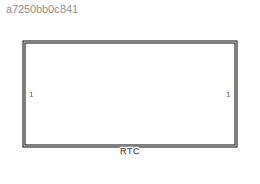
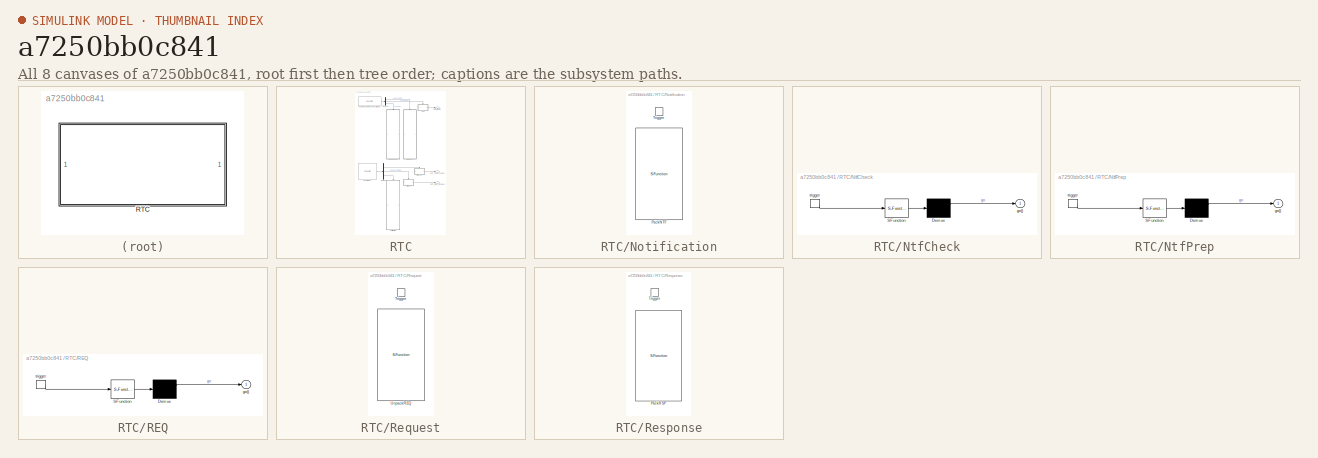
[diagram: thumbnail index - all 8 canvases of the model, root first then tree order]
MODEL slx_a7250bb0c841
KIND library
CONFIG AbsTol = auto
CONFIG EnableMultiTasking = off
CONFIG FixedStep = auto
CONFIG MaxStep = auto
CONFIG MinStep = auto
CONFIG RelTol = 1e-3
CONFIG SampleTimeConstraint = Unconstrained
CONFIG SolverName = VariableStepAuto
CONFIG StartTime = 0.0
CONFIG StopTime = 10.0
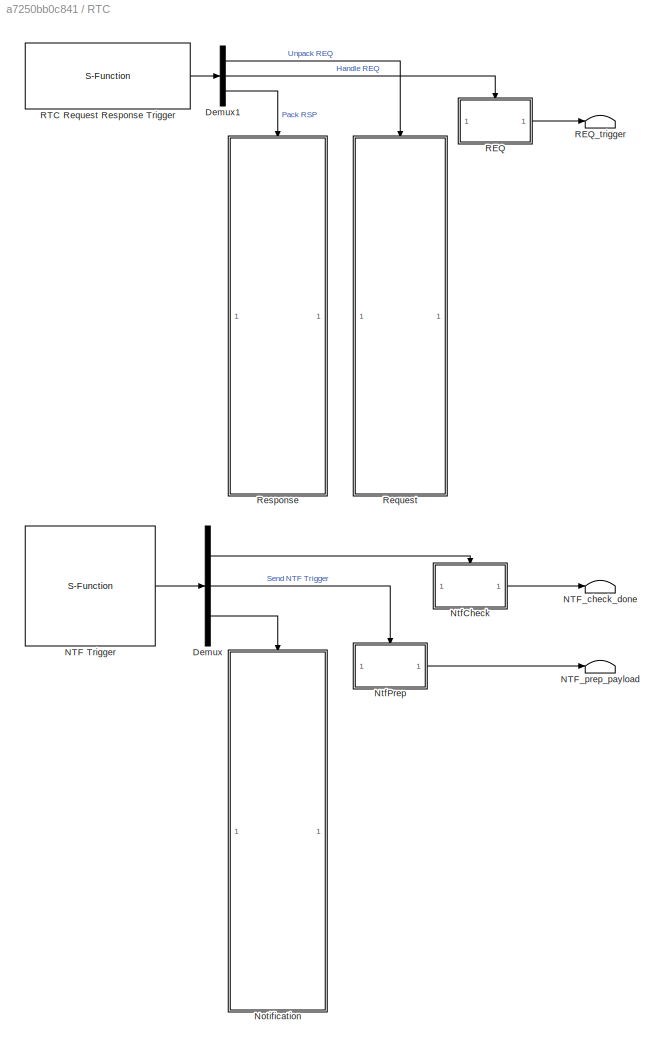
BLOCK [SubSystem] RTC
  MoveFcn = RTC_Mask.CB_TriggerInit(gcbh);
BLOCK [Demux] RTC/Demux
  Outputs = 3
BLOCK [Demux] RTC/Demux1
  Outputs = 3
BLOCK [S-Function] RTC/NTF Trigger
  EnableBusSupport = off
  FunctionName = RTC_NTF
  Parameters = MessagePath,EnableNotification, NTF.TotalCharSize, DbgTriggerNTF
  SFcnIsStateOwnerBlock = off
  SFunctionDeploymentMode = off
BLOCK [Terminator] RTC/NTF_check_done
BLOCK [Terminator] RTC/NTF_prep_payload
BLOCK [SubSystem] RTC/Notification
  TreatAsAtomicUnit = on
BLOCK [S-Function] RTC/Notification/PackNTF
  EnableBusSupport = off
  FunctionName = RTC_BytePack
  Parameters = PackedDataName,unpackedNameList,UnpackedTypes,UnpackedWidths,ElemCharIndex,ElemCharSize,TotalCharSize,BlockRole,MessagePath,DebugLevel
  SFcnIsStateOwnerBlock = off
  SFunctionDeploymentMode = off
BLOCK [TriggerPort] RTC/Notification/Trigger
  StatesWhenEnabling = held
  TriggerType = function-call
  VariantControl = Variant
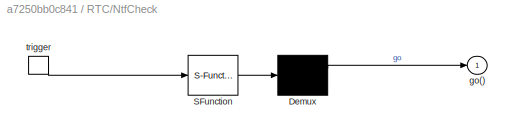
BLOCK [SubSystem] RTC/NtfCheck
  ErrorFcn = Stateflow.Translate.translate
  PermitHierarchicalResolution = ExplicitOnly
  RTWFcnNameOpts = User specified
  RTWSystemCode = Inline
  SFBlockType = MATLAB Function
  TreatAsAtomicUnit = on
BLOCK [Demux] RTC/NtfCheck/ Demux 
  Outputs = 1
BLOCK [S-Function] RTC/NtfCheck/ SFunction 
  EnableBusSupport = off
  FunctionName = sf_sfun
  PortCounts = [1 1]
  SFcnIsStateOwnerBlock = off
  SFunctionDeploymentMode = off
  Tag = Stateflow S-Function 1
BLOCK [Outport] RTC/NtfCheck/go()
  VectorParamsAs1DForOutWhenUnconnected = off
BLOCK [TriggerPort] RTC/NtfCheck/trigger
  ShowOutputPort = on
  StatesWhenEnabling = held
  TriggerType = function-call
  VariantControl = (inherit)
BLOCK [SubSystem] RTC/NtfPrep
  ErrorFcn = Stateflow.Translate.translate
  PermitHierarchicalResolution = ExplicitOnly
  RTWFcnNameOpts = User specified
  RTWSystemCode = Inline
  SFBlockType = MATLAB Function
  TreatAsAtomicUnit = on
BLOCK [Demux] RTC/NtfPrep/ Demux 
  Outputs = 1
BLOCK [S-Function] RTC/NtfPrep/ SFunction 
  EnableBusSupport = off
  FunctionName = sf_sfun
  PortCounts = [1 1]
  SFcnIsStateOwnerBlock = off
  SFunctionDeploymentMode = off
  Tag = Stateflow S-Function 3
BLOCK [Outport] RTC/NtfPrep/go()
  VectorParamsAs1DForOutWhenUnconnected = off
BLOCK [TriggerPort] RTC/NtfPrep/trigger
  ShowOutputPort = on
  StatesWhenEnabling = held
  TriggerType = function-call
  VariantControl = (inherit)
BLOCK [SubSystem] RTC/REQ
  ErrorFcn = Stateflow.Translate.translate
  PermitHierarchicalResolution = ExplicitOnly
  RTWFcnName = RTC_DONOTHING_BLOCK
  RTWFcnNameOpts = User specified
  RTWSystemCode = Nonreusable function
  SFBlockType = MATLAB Function
  TreatAsAtomicUnit = on
BLOCK [Demux] RTC/REQ/ Demux 
  Outputs = 1
BLOCK [S-Function] RTC/REQ/ SFunction 
  EnableBusSupport = off
  FunctionName = sf_sfun
  PortCounts = [1 1]
  SFcnIsStateOwnerBlock = off
  SFunctionDeploymentMode = off
  Tag = Stateflow S-Function 2
BLOCK [Outport] RTC/REQ/go()
  VectorParamsAs1DForOutWhenUnconnected = off
BLOCK [TriggerPort] RTC/REQ/trigger
  ShowOutputPort = on
  StatesWhenEnabling = held
  TriggerType = function-call
  VariantControl = (inherit)
BLOCK [Terminator] RTC/REQ_trigger
BLOCK [S-Function] RTC/RTC Request Response Trigger
  EnableBusSupport = off
  FunctionName = RTC_REQ_RSP
  Parameters = MessagePath, coreIndex, REQ_Priority, REQ.TotalCharSize, RSP.TotalCharSize, NTF.TotalCharSize, Description, RequestAtInit, payloadMetaHash, DbgTriggerREQRSP
  SFcnIsStateOwnerBlock = off
  SFunctionDeploymentMode = off
BLOCK [SubSystem] RTC/Request
BLOCK [TriggerPort] RTC/Request/Trigger
  StatesWhenEnabling = held
  TriggerType = function-call
  VariantControl = Variant
BLOCK [S-Function] RTC/Request/UnpackREQ
  EnableBusSupport = off
  FunctionName = RTC_BytePack
  Parameters = PackedDataName,unpackedNameList,UnpackedTypes,UnpackedWidths,ElemCharIndex,ElemCharSize,TotalCharSize,BlockRole,MessagePath,DebugLevel
  SFcnIsStateOwnerBlock = off
  SFunctionDeploymentMode = off
BLOCK [SubSystem] RTC/Response
  TreatAsAtomicUnit = on
BLOCK [S-Function] RTC/Response/PackRSP
  EnableBusSupport = off
  FunctionName = RTC_BytePack
  Parameters = PackedDataName,unpackedNameList,UnpackedTypes,UnpackedWidths,ElemCharIndex,ElemCharSize,TotalCharSize,BlockRole,MessagePath,DebugLevel
  SFcnIsStateOwnerBlock = off
  SFunctionDeploymentMode = off
BLOCK [TriggerPort] RTC/Response/Trigger
  StatesWhenEnabling = held
  TriggerType = function-call
  VariantControl = Variant
CHART RTC/REQ states=1 transitions=1
  STATE_LABEL 'eML_blk_kernel()'
  STATE_LABEL 'SCRIPT:\nfunction func()\n% Invoke the function trigger output\ngo();\n'
CHART RTC/NtfPrep states=1 transitions=1
  STATE_LABEL 'eML_blk_kernel()'
  STATE_LABEL 'SCRIPT:\nfunction func()\n% Invoke the function trigger output\ngo();\n'
CHART RTC/NtfCheck states=1 transitions=1
  STATE_LABEL 'eML_blk_kernel()'
  STATE_LABEL 'SCRIPT:\nfunction func()\n% Invoke the function trigger output\ngo();\n'
CHART  states=0 transitions=0
CHART  states=0 transitions=0
CHART  states=0 transitions=0
